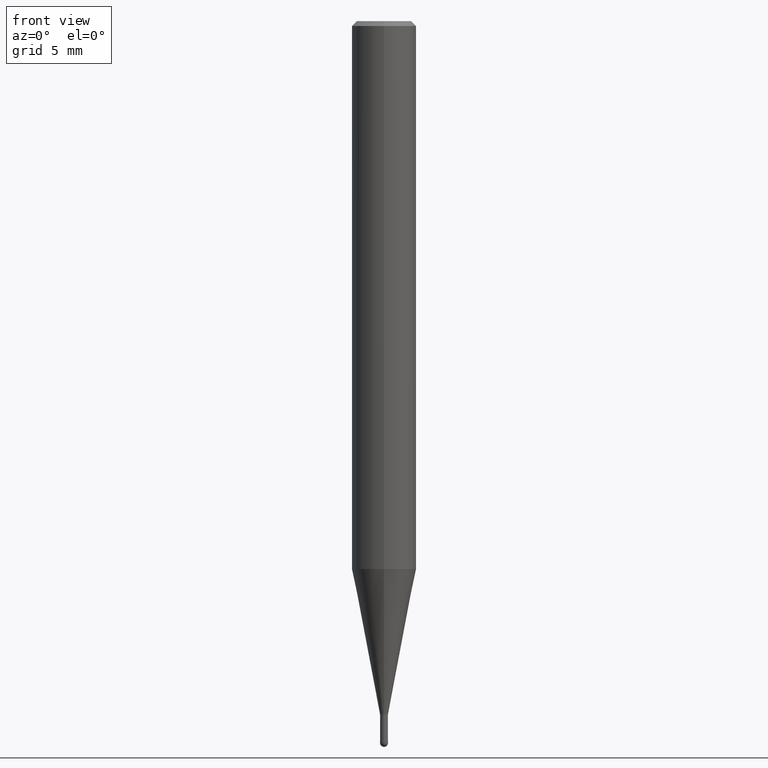
[diagram: clean part render]
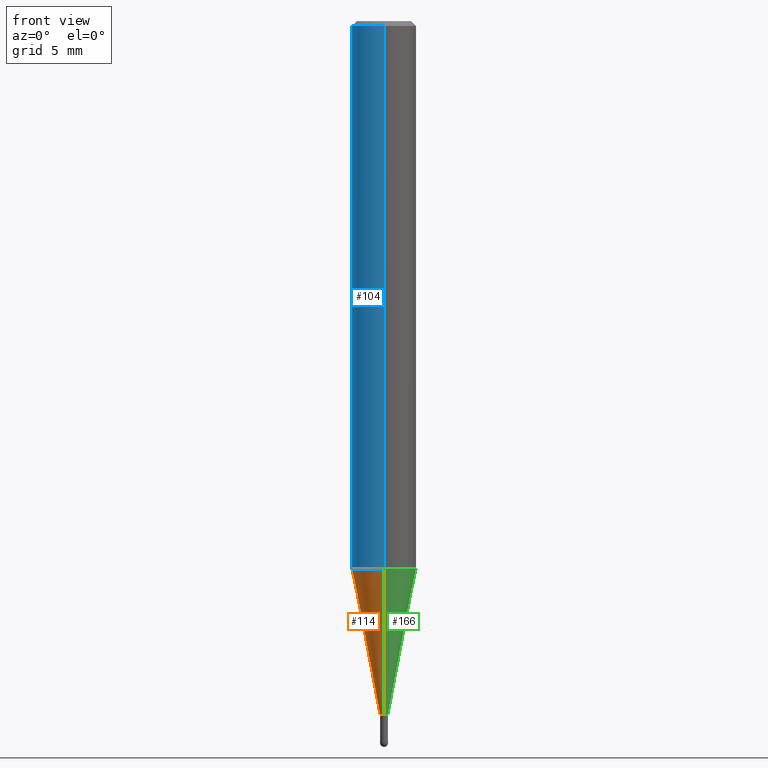
[diagram: same view with three faces highlighted in distinct colors, each labeled with its STEP entity id]
A machine part, front view with three faces highlighted in distinct colors.
Their STEP definitions:

[orange] entity #114 — the highlighted conical surface has half-angle 11 deg.
#94=VERTEX_POINT('',#235);
#114=ADVANCED_FACE('',(#257),#258,.T.);
#122=VERTEX_POINT('',#269);
#132=VERTEX_POINT('',#280);
#134=VERTEX_POINT('',#282);
#154=EDGE_CURVE('',#94,#132,#303,.T.);
#160=EDGE_CURVE('',#94,#122,#309,.T.);
#172=EDGE_CURVE('',#132,#134,#325,.T.);
#208=EDGE_CURVE('',#134,#122,#364,.T.);
#235=CARTESIAN_POINT('',(2.99967326368791E-017,-0.24495,-43.0));
#257=FACE_OUTER_BOUND('',#410,.T.);
#258=CONICAL_SURFACE('',#411,1.12245,0.191979834546789);
#269=CARTESIAN_POINT('',(0.0,0.24495,-43.0));
#280=CARTESIAN_POINT('',(2.44915147732706E-016,-1.99995,-33.971));
#282=CARTESIAN_POINT('',(0.0,1.99995,-33.971));
#303=LINE('',#466,#467);
#309=CIRCLE('',#477,0.24495);
#325=CIRCLE('',#495,1.99995);
#364=LINE('',#547,#548);
#410=EDGE_LOOP('',(#584,#585,#586,#587));
#411=AXIS2_PLACEMENT_3D('',#588,#589,#590);
#466=CARTESIAN_POINT('',(1.37455940184793E-016,-1.12245,-38.4855));
#467=VECTOR('',#629,1.0);
#477=AXIS2_PLACEMENT_3D('',#634,#635,#636);
#495=AXIS2_PLACEMENT_3D('',#670,#671,#672);
#547=CARTESIAN_POINT('',(-1.37455940184793E-016,1.12245,-38.4855));
#548=VECTOR('',#722,1.0);
#584=ORIENTED_EDGE('',*,*,#208,.T.);
#585=ORIENTED_EDGE('',*,*,#160,.F.);
#586=ORIENTED_EDGE('',*,*,#154,.T.);
#587=ORIENTED_EDGE('',*,*,#172,.T.);
#588=CARTESIAN_POINT('',(0.0,0.0,-38.4855));
#589=DIRECTION('',(-0.0,-0.0,1.0));
#590=DIRECTION('',(0.0,1.0,0.0));
#629=DIRECTION('',(2.336582348441E-017,-0.19080272947693,0.981628401394414));
#634=CARTESIAN_POINT('',(0.0,0.0,-43.0));
#635=DIRECTION('',(0.0,0.0,-1.0));
#636=DIRECTION('',(0.0,1.0,0.0));
#670=CARTESIAN_POINT('',(0.0,0.0,-33.971));
#671=DIRECTION('',(0.0,0.0,-1.0));
#672=DIRECTION('',(0.0,1.0,0.0));
#722=DIRECTION('',(2.336582348441E-017,-0.19080272947693,-0.981628401394414));

[blue] entity #104 — the highlighted cylindrical surface (edge-blend (fillet) strip) has radius 2 mm, axis along (-0, -0, 1).
#98=VERTEX_POINT('',#239);
#104=ADVANCED_FACE('',(#245),#246,.T.);
#106=VERTEX_POINT('',#248);
#112=VERTEX_POINT('',#255);
#128=EDGE_CURVE('',#144,#98,#276,.T.);
#142=EDGE_CURVE('',#106,#112,#291,.T.);
#144=VERTEX_POINT('',#293);
#158=EDGE_CURVE('',#112,#144,#307,.T.);
#176=EDGE_CURVE('',#106,#98,#330,.T.);
#239=CARTESIAN_POINT('',(0.0,2.0,-33.971));
#245=FACE_OUTER_BOUND('',#397,.T.);
#246=CYLINDRICAL_SURFACE('',#398,2.0);
#248=CARTESIAN_POINT('',(2.44921270764475E-016,-2.0,-33.971));
#255=CARTESIAN_POINT('',(2.44921270764475E-016,-2.0,-0.299999999999997));
#276=LINE('',#430,#431);
#291=LINE('',#448,#449);
#293=CARTESIAN_POINT('',(0.0,2.0,-0.299999999999997));
#307=CIRCLE('',#474,2.0);
#330=CIRCLE('',#501,2.0);
#397=EDGE_LOOP('',(#565,#566,#567,#568));
#398=AXIS2_PLACEMENT_3D('',#569,#570,#571);
#430=CARTESIAN_POINT('',(-2.44921270764475E-016,2.0,-17.1355));
#431=VECTOR('',#611,1.0);
#448=CARTESIAN_POINT('',(2.44921270764475E-016,-2.0,-17.1355));
#449=VECTOR('',#621,1.0);
#474=AXIS2_PLACEMENT_3D('',#631,#632,#633);
#501=AXIS2_PLACEMENT_3D('',#681,#682,#683);
#565=ORIENTED_EDGE('',*,*,#128,.T.);
#566=ORIENTED_EDGE('',*,*,#176,.F.);
#567=ORIENTED_EDGE('',*,*,#142,.T.);
#568=ORIENTED_EDGE('',*,*,#158,.T.);
#569=CARTESIAN_POINT('',(0.0,0.0,-17.1355));
#570=DIRECTION('',(-0.0,-0.0,1.0));
#571=DIRECTION('',(0.0,1.0,0.0));
#611=DIRECTION('',(0.0,0.0,-1.0));
#621=DIRECTION('',(-0.0,-0.0,1.0));
#631=CARTESIAN_POINT('',(0.0,0.0,-0.299999999999997));
#632=DIRECTION('',(0.0,0.0,-1.0));
#633=DIRECTION('',(0.0,1.0,0.0));
#681=CARTESIAN_POINT('',(0.0,0.0,-33.971));
#682=DIRECTION('',(0.0,0.0,-1.0));
#683=DIRECTION('',(0.0,1.0,0.0));

[green] entity #166 — the highlighted conical surface has half-angle 11 deg.
#94=VERTEX_POINT('',#235);
#122=VERTEX_POINT('',#269);
#132=VERTEX_POINT('',#280);
#134=VERTEX_POINT('',#282);
#154=EDGE_CURVE('',#94,#132,#303,.T.);
#166=ADVANCED_FACE('',(#316),#317,.T.);
#196=EDGE_CURVE('',#122,#94,#350,.T.);
#208=EDGE_CURVE('',#134,#122,#364,.T.);
#212=EDGE_CURVE('',#134,#132,#369,.T.);
#235=CARTESIAN_POINT('',(2.99967326368791E-017,-0.24495,-43.0));
#269=CARTESIAN_POINT('',(0.0,0.24495,-43.0));
#280=CARTESIAN_POINT('',(2.44915147732706E-016,-1.99995,-33.971));
#282=CARTESIAN_POINT('',(0.0,1.99995,-33.971));
#303=LINE('',#466,#467);
#316=FACE_OUTER_BOUND('',#485,.T.);
#317=CONICAL_SURFACE('',#486,1.12245,0.191979834546789);
#350=CIRCLE('',#528,0.24495);
#364=LINE('',#547,#548);
#369=CIRCLE('',#554,1.99995);
#466=CARTESIAN_POINT('',(1.37455940184793E-016,-1.12245,-38.4855));
#467=VECTOR('',#629,1.0);
#485=EDGE_LOOP('',(#647,#648,#649,#650));
#486=AXIS2_PLACEMENT_3D('',#651,#652,#653);
#528=AXIS2_PLACEMENT_3D('',#696,#697,#698);
#547=CARTESIAN_POINT('',(-1.37455940184793E-016,1.12245,-38.4855));
#548=VECTOR('',#722,1.0);
#554=AXIS2_PLACEMENT_3D('',#731,#732,#733);
#629=DIRECTION('',(2.336582348441E-017,-0.19080272947693,0.981628401394414));
#647=ORIENTED_EDGE('',*,*,#208,.F.);
#648=ORIENTED_EDGE('',*,*,#212,.T.);
#649=ORIENTED_EDGE('',*,*,#154,.F.);
#650=ORIENTED_EDGE('',*,*,#196,.F.);
#651=CARTESIAN_POINT('',(0.0,0.0,-38.4855));
#652=DIRECTION('',(-0.0,-0.0,1.0));
#653=DIRECTION('',(0.0,1.0,0.0));
#696=CARTESIAN_POINT('',(0.0,0.0,-43.0));
#697=DIRECTION('',(0.0,0.0,-1.0));
#698=DIRECTION('',(0.0,1.0,0.0));
#722=DIRECTION('',(2.336582348441E-017,-0.19080272947693,-0.981628401394414));
#731=CARTESIAN_POINT('',(0.0,0.0,-33.971));
#732=DIRECTION('',(0.0,0.0,-1.0));
#733=DIRECTION('',(0.0,1.0,0.0));